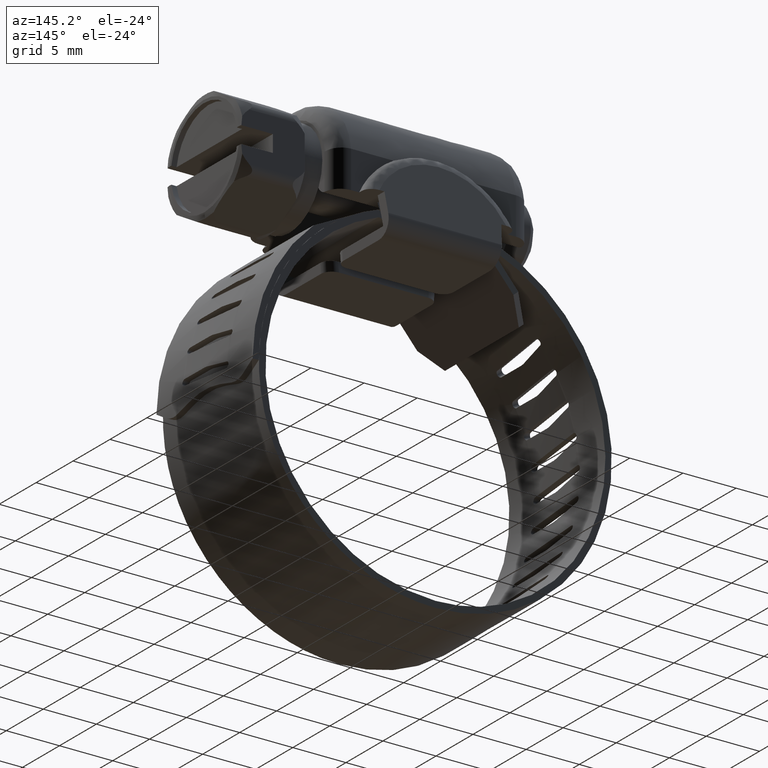
[diagram: clean part render]
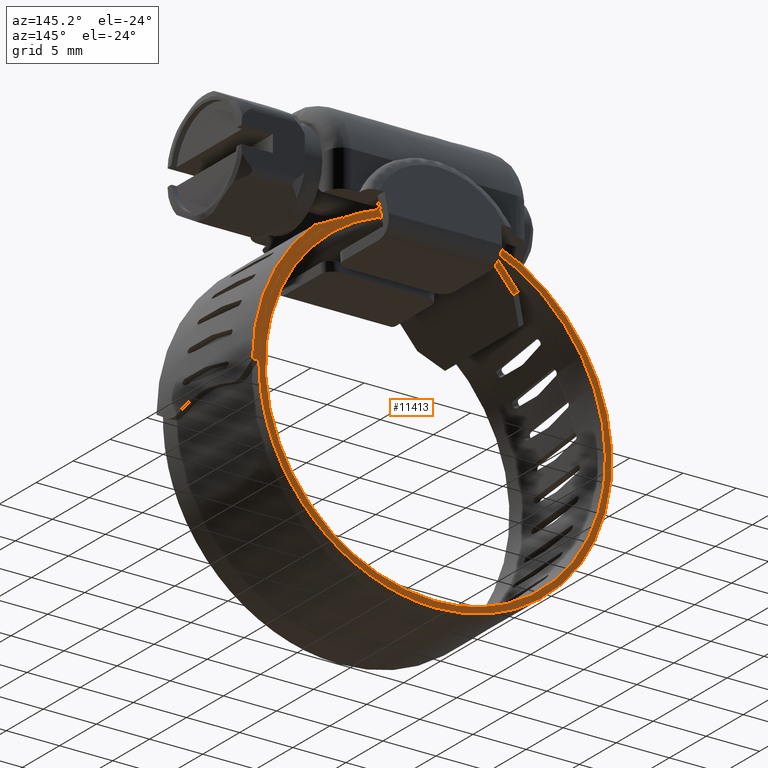
[diagram: same view with one face highlighted and labeled with its STEP entity id]
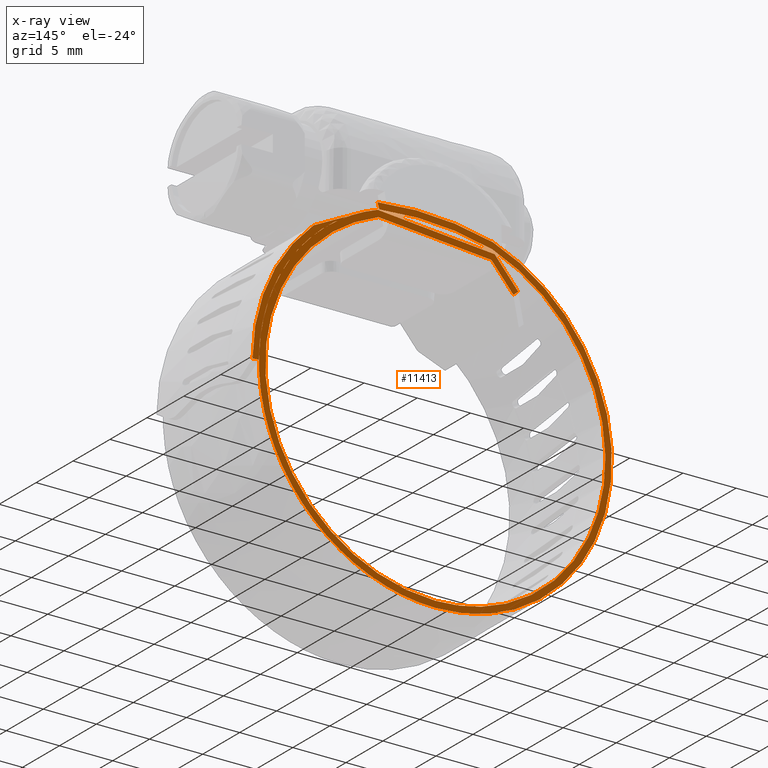
[diagram: x-ray of the same camera — body ghosted, the highlighted face saturated]
A machine part, auxiliary view. The second image highlights one B-rep face of the part: STEP entity #11413.
The next image is the same camera in x-ray: the body ghosted, the highlighted face saturated — about 0% of this face is hidden behind the body in this view.
In plain terms, the highlighted face is a freeform B-spline surface patch.
Its self-contained STEP definition (entity closure, byte-faithful):
#8290=CARTESIAN_POINT('',(-7.791181798299180,6.499999999999920,8.347631388851450));
#8291=VERTEX_POINT('',#8290);
#8299=CARTESIAN_POINT('',(-7.334361413864390,6.500000000000000,7.958639061497649));
#8300=VERTEX_POINT('',#8299);
#8301=CARTESIAN_POINT('',(-7.334361413864390,6.500000000000000,7.958639061497649));
#8302=CARTESIAN_POINT('',(-7.791181798299180,6.499999999999920,8.347631388851450));
#8303=QUASI_UNIFORM_CURVE('',1,(#8301,#8302),.UNSPECIFIED.,.F.,.U.);
#8304=EDGE_CURVE('',#8300,#8291,#8303,.T.);
#8362=CARTESIAN_POINT('',(-5.572247165430700,6.500000000000000,10.953473794129900));
#8363=VERTEX_POINT('',#8362);
#8364=CARTESIAN_POINT('',(-5.572247165430700,6.500000000000000,10.953473794129900));
#8365=CARTESIAN_POINT('',(-7.791181798299180,6.499999999999920,8.347631388851450));
#8366=QUASI_UNIFORM_CURVE('',1,(#8364,#8365),.UNSPECIFIED.,.F.,.U.);
#8367=EDGE_CURVE('',#8363,#8291,#8366,.T.);
#8403=CARTESIAN_POINT('',(5.428691733681980,6.500000000000000,11.911233856249240));
#8404=VERTEX_POINT('',#8403);
#8410=CARTESIAN_POINT('',(5.428691733681980,6.500000000000000,11.911233856249240));
#8411=CARTESIAN_POINT('',(-5.572247165430700,6.500000000000000,10.953473794129900));
#8412=QUASI_UNIFORM_CURVE('',1,(#8410,#8411),.UNSPECIFIED.,.F.,.U.);
#8413=EDGE_CURVE('',#8404,#8363,#8412,.T.);
#8509=CARTESIAN_POINT('',(-5.403568536057810,6.500000000000000,11.919905432693740));
#8510=VERTEX_POINT('',#8509);
#8516=CARTESIAN_POINT('',(-0.013288823278815,6.500000000000000,-20.375994680938181));
#8517=VERTEX_POINT('',#8516);
#8518=CARTESIAN_POINT('',(-5.403568536057810,6.500000000000000,11.919905432693740));
#8519=CARTESIAN_POINT('',(-6.035115718634340,6.499999999999989,11.702501730989590));
#8520=CARTESIAN_POINT('',(-7.356251747863360,6.500000000000004,11.156476872160971));
#8521=CARTESIAN_POINT('',(-9.256798365550859,6.500000000000004,10.066172607384971));
#8522=CARTESIAN_POINT('',(-10.966313753431500,6.499999999999989,8.744811107025498));
#8523=CARTESIAN_POINT('',(-12.301093371323740,6.500000000000044,7.413139469327751));
#8524=CARTESIAN_POINT('',(-13.416335895158230,6.500000000000008,6.048236911621512));
#8525=CARTESIAN_POINT('',(-14.388223821997350,6.499999999999916,4.576336163049805));
#8526=CARTESIAN_POINT('',(-15.115777700032689,6.500000000000019,3.138124818919907));
#8527=CARTESIAN_POINT('',(-15.713726945869681,6.499999999999930,1.643467278052422));
#8528=CARTESIAN_POINT('',(-16.099898394798171,6.499999999999764,0.362339750846856));
#8529=CARTESIAN_POINT('',(-16.423270304070702,6.499999999999915,-1.214818469182103));
#8530=CARTESIAN_POINT('',(-16.617745289809509,6.500000000000068,-2.906415811022940));
#8531=CARTESIAN_POINT('',(-16.605550491049041,6.499999999999973,-4.853639050636892));
#8532=CARTESIAN_POINT('',(-16.386057033032181,6.500000000000333,-6.572812909122177));
#8533=CARTESIAN_POINT('',(-16.038612212973479,6.499999999999957,-8.144980053231299));
#8534=CARTESIAN_POINT('',(-15.503958618312950,6.500000000000004,-9.825531892141592));
#8535=CARTESIAN_POINT('',(-14.689416708443540,6.500000000000001,-11.594650624427519));
#8536=CARTESIAN_POINT('',(-13.764438379994020,6.499999999999997,-13.095857495227040));
#8537=CARTESIAN_POINT('',(-12.835681343971689,6.500000000000006,-14.336182407994810));
#8538=CARTESIAN_POINT('',(-11.598482600795410,6.499999999999999,-15.717327511660390));
#8539=CARTESIAN_POINT('',(-10.006616258601030,6.500000000000004,-17.089265590925290));
#8540=CARTESIAN_POINT('',(-8.139000261824808,6.499999999999994,-18.290079705499920));
#8541=CARTESIAN_POINT('',(-6.496307109234742,6.500000000000035,-19.085024486952442));
#8542=CARTESIAN_POINT('',(-4.809868689667819,6.500000000000028,-19.693877502433558));
#8543=CARTESIAN_POINT('',(-2.715181965251238,6.499999999999833,-20.217563928457849));
#8544=CARTESIAN_POINT('',(-1.045541048125247,6.499999999999994,-20.375275074392469));
#8545=CARTESIAN_POINT('',(-0.013288823278815,6.500000000000000,-20.375994680938181));
#8546=B_SPLINE_CURVE_WITH_KNOTS('',3,(#8518,#8519,#8520,#8521,#8522,#8523,#8524,#8525,#8526,#8527,#8528,#8529,#8530,#8531,#8532,#8533,#8534,#8535,#8536,#8537,#8538,#8539,#8540,#8541,#8542,#8543,#8544,#8545),.UNSPECIFIED.,.F.,.U.,(4,1,1,1,1,1,1,1,1,1,1,1,1,1,1,1,1,1,1,1,1,1,1,1,1,4),(0.000000023502757,2.003759568769411,4.280777629892050,6.557814906617693,8.470510855706301,9.927803084700898,11.840500513877510,13.753199401426290,14.755090884607050,16.667781735637739,17.760753712184460,19.582377517841270,21.768324770029050,23.589894793816999,24.773952498007450,26.595562161928228,28.872591095161390,30.603125920775600,31.878267851984209,33.517717666214153,36.159065329592408,38.162848643233907,40.166629592341501,41.623913405553331,43.536615741167083,46.633351803859057),.UNSPECIFIED.);
#8547=EDGE_CURVE('',#8510,#8517,#8546,.T.);
#8549=CARTESIAN_POINT('',(-0.013288823278815,6.500000000000000,-20.375994680938181));
#8550=CARTESIAN_POINT('',(0.806431367803265,6.500000000000004,-20.376693983167829));
#8551=CARTESIAN_POINT('',(2.233426539291146,6.499999999999998,-20.271876379137701));
#8552=CARTESIAN_POINT('',(4.378054711637666,6.500000000000004,-19.832213544916272));
#8553=CARTESIAN_POINT('',(6.194485005057371,6.500000000000004,-19.218837664334099));
#8554=CARTESIAN_POINT('',(7.759397835748891,6.499999999999997,-18.475113068337158));
#8555=CARTESIAN_POINT('',(9.304784938885675,6.500000000000007,-17.566752882438038));
#8556=CARTESIAN_POINT('',(10.789986873649640,6.499999999999916,-16.451925336573929));
#8557=CARTESIAN_POINT('',(12.292008953255880,6.499999999999932,-14.987135356127499));
#8558=CARTESIAN_POINT('',(13.520162398128271,6.500000000000343,-13.476876655412759));
#8559=CARTESIAN_POINT('',(14.622352273293970,6.499999999999750,-11.726765338134120));
#8560=CARTESIAN_POINT('',(15.457258006659680,6.500000000000120,-9.933941146299908));
#8561=CARTESIAN_POINT('',(16.112868991961371,6.500000000000084,-7.941325783754777));
#8562=CARTESIAN_POINT('',(16.559837193321670,6.499999999999957,-5.671671735344448));
#8563=CARTESIAN_POINT('',(16.639800223342451,6.500000000000073,-3.570760533964450));
#8564=CARTESIAN_POINT('',(16.489350744930661,6.499999999999924,-1.693422271203688));
#8565=CARTESIAN_POINT('',(16.194854989567911,6.500000000000448,0.075929581194763));
#8566=CARTESIAN_POINT('',(15.639109317255031,6.499999999999440,1.912002790568331));
#8567=CARTESIAN_POINT('',(14.867807845445460,6.500000000000371,3.664311765782506));
#8568=CARTESIAN_POINT('',(13.991199101996861,6.499999999999826,5.229204023845340));
#8569=CARTESIAN_POINT('',(12.917727080458089,6.499999999999996,6.705806046635198));
#8570=CARTESIAN_POINT('',(11.727654913601301,6.499999999999970,8.006281777172553));
#8571=CARTESIAN_POINT('',(10.331604710557540,6.500000000000121,9.271972541471293));
#8572=CARTESIAN_POINT('',(8.289337180077407,6.499999999999846,10.708490960726440));
#8573=CARTESIAN_POINT('',(6.490304881145353,6.499999999999777,11.544013987446920));
#8574=CARTESIAN_POINT('',(5.428691733681980,6.500000000000000,11.911233856249240));
#8575=B_SPLINE_CURVE_WITH_KNOTS('',3,(#8549,#8550,#8551,#8552,#8553,#8554,#8555,#8556,#8557,#8558,#8559,#8560,#8561,#8562,#8563,#8564,#8565,#8566,#8567,#8568,#8569,#8570,#8571,#8572,#8573,#8574),.UNSPECIFIED.,.F.,.U.,(4,1,1,1,1,1,1,1,1,1,1,1,1,1,1,1,1,1,1,1,1,1,1,4),(0.000000023376131,2.459158380666885,4.280777629463522,6.557814906029797,8.197259746065591,9.472397940618698,11.931581747682650,13.753199400331381,15.756981716544850,17.760753710808419,19.946705124044851,21.677238096110401,24.045308689251129,26.868818613411690,27.961791121988401,29.692314471448011,32.242585574857621,33.699881434668669,35.430419455720262,37.616360522943062,39.164739888885492,40.713116193422962,43.263382482265669,46.633351800454129),.UNSPECIFIED.);
#8576=EDGE_CURVE('',#8517,#8404,#8575,.T.);
#8781=CARTESIAN_POINT('',(5.352101093344911,6.500000000000000,11.302296120139539));
#8782=VERTEX_POINT('',#8781);
#8788=CARTESIAN_POINT('',(-0.000000030884454,6.500000000000000,-19.776000000000000));
#8789=VERTEX_POINT('',#8788);
#8790=CARTESIAN_POINT('',(-0.000000030884454,6.500000000000000,-19.776000000000000));
#8791=CARTESIAN_POINT('',(1.021026014391666,6.500000000000013,-19.776132088201791));
#8792=CARTESIAN_POINT('',(2.479568310869515,6.499999999999994,-19.635889140518898));
#8793=CARTESIAN_POINT('',(4.496763786521949,6.499999999999989,-19.158299793738902));
#8794=CARTESIAN_POINT('',(5.878506052236212,6.500000000000024,-18.683605455642230));
#8795=CARTESIAN_POINT('',(7.446532381295089,6.499999999999957,-17.970851255927219));
#8796=CARTESIAN_POINT('',(8.934261617582374,6.500000000000052,-17.098044404254839));
#8797=CARTESIAN_POINT('',(10.395679696069671,6.499999999999960,-15.978639000594191));
#8798=CARTESIAN_POINT('',(11.707887902465290,6.499999999999977,-14.730711413145221));
#8799=CARTESIAN_POINT('',(13.042302137822150,6.500000000000018,-13.141277023053419));
#8800=CARTESIAN_POINT('',(14.180757335391950,6.499999999999992,-11.298593250820010));
#8801=CARTESIAN_POINT('',(15.085700580641991,6.500000000000037,-9.238641514645671));
#8802=CARTESIAN_POINT('',(15.703298567543680,6.499999999999828,-7.133960153037624));
#8803=CARTESIAN_POINT('',(15.996485771340300,6.500000000000127,-5.018385936458238));
#8804=CARTESIAN_POINT('',(16.015245659438818,6.499999999999971,-2.973674692590238));
#8805=CARTESIAN_POINT('',(15.824084661977050,6.500000000000001,-1.171535193394071));
#8806=CARTESIAN_POINT('',(15.422977328925210,6.500000000000003,0.594874232255430));
#8807=CARTESIAN_POINT('',(14.798372018724510,6.500000000000002,2.418847191265614));
#8808=CARTESIAN_POINT('',(13.871421418875601,6.499999999999999,4.310010169260056));
#8809=CARTESIAN_POINT('',(12.664689754883520,6.500000000000001,6.071198904935471));
#8810=CARTESIAN_POINT('',(11.228602481033640,6.500000000000002,7.687299097499741));
#8811=CARTESIAN_POINT('',(9.701624023678450,6.499999999999996,9.007821652275712));
#8812=CARTESIAN_POINT('',(7.696108755480823,6.500000000000049,10.318931074040730));
#8813=CARTESIAN_POINT('',(6.259358412635001,6.499999999999941,10.980374642001481));
#8814=CARTESIAN_POINT('',(5.352101093344911,6.500000000000000,11.302296120139539));
#8815=B_SPLINE_CURVE_WITH_KNOTS('',3,(#8790,#8791,#8792,#8793,#8794,#8795,#8796,#8797,#8798,#8799,#8800,#8801,#8802,#8803,#8804,#8805,#8806,#8807,#8808,#8809,#8810,#8811,#8812,#8813,#8814),.UNSPECIFIED.,.F.,.U.,(4,1,1,1,1,1,1,1,1,1,1,1,1,1,1,1,1,1,1,1,1,1,4),(0.000000026661617,3.063044423904231,4.375789051827482,6.213640846139199,7.438865097263268,9.539253421889690,11.377092929690930,12.952383586074159,14.965261994874551,17.590747863307580,19.428592246082982,21.704003029460200,24.154418226000971,25.817229070750191,27.830114740075249,29.580436588815601,31.243243462043690,33.606178365087359,35.881597479607699,37.631920545437382,40.082383303174552,41.920224716448232,44.808237193168132),.UNSPECIFIED.);
#8816=EDGE_CURVE('',#8789,#8782,#8815,.T.);
#8818=CARTESIAN_POINT('',(-5.352101035134290,6.500000000000000,11.302296140801641));
#8819=VERTEX_POINT('',#8818);
#8820=CARTESIAN_POINT('',(-5.352101035134290,6.500000000000000,11.302296140801641));
#8821=CARTESIAN_POINT('',(-6.204367464975141,6.499999999999968,10.999863199201011));
#8822=CARTESIAN_POINT('',(-7.564066753640140,6.500000000000046,10.382926737821940));
#8823=CARTESIAN_POINT('',(-9.315624799275682,6.499999999999948,9.271698872757582));
#8824=CARTESIAN_POINT('',(-10.775706557793580,6.500000000000046,8.103653463495517));
#8825=CARTESIAN_POINT('',(-12.167772194562920,6.499999999999975,6.684431086207111));
#8826=CARTESIAN_POINT('',(-13.274230420750239,6.499999999999937,5.212025277133877));
#8827=CARTESIAN_POINT('',(-14.156604648391481,6.500000000000285,3.732578933212049));
#8828=CARTESIAN_POINT('',(-14.931576075808360,6.500000000000076,2.095351371213888));
#8829=CARTESIAN_POINT('',(-15.536020649585449,6.499999999999388,0.231032224667480));
#8830=CARTESIAN_POINT('',(-15.949830203022641,6.500000000000404,-1.980198145106270));
#8831=CARTESIAN_POINT('',(-16.038791203159668,6.499999999999974,-3.822069859813993));
#8832=CARTESIAN_POINT('',(-15.913310878540180,6.499999999999708,-5.627520067522758));
#8833=CARTESIAN_POINT('',(-15.639562555683259,6.500000000000425,-7.358695095509256));
#8834=CARTESIAN_POINT('',(-15.079412828028230,6.499999999999908,-9.267712306396325));
#8835=CARTESIAN_POINT('',(-14.186958221754020,6.499999999999954,-11.269282975054169));
#8836=CARTESIAN_POINT('',(-13.105269705860390,6.500000000000041,-13.041742913934190));
#8837=CARTESIAN_POINT('',(-11.847970717236420,6.499999999999987,-14.581629210887151));
#8838=CARTESIAN_POINT('',(-10.444776501025011,6.500000000000007,-15.945628997221849));
#8839=CARTESIAN_POINT('',(-8.982355815799124,6.499999999999982,-17.065796539245881));
#8840=CARTESIAN_POINT('',(-7.293997042535797,6.500000000000039,-18.056295201207931));
#8841=CARTESIAN_POINT('',(-5.716576313035895,6.500000000000068,-18.752603700754069));
#8842=CARTESIAN_POINT('',(-3.880448841742876,6.499999999999215,-19.338854421509030));
#8843=CARTESIAN_POINT('',(-2.012856843487396,6.500000000002219,-19.695510157565369));
#8844=CARTESIAN_POINT('',(-0.612603162032093,6.499999999997836,-19.776010636159040));
#8845=CARTESIAN_POINT('',(-0.000000030884454,6.500000000000000,-19.776000000000000));
#8846=B_SPLINE_CURVE_WITH_KNOTS('',3,(#8820,#8821,#8822,#8823,#8824,#8825,#8826,#8827,#8828,#8829,#8830,#8831,#8832,#8833,#8834,#8835,#8836,#8837,#8838,#8839,#8840,#8841,#8842,#8843,#8844,#8845),.UNSPECIFIED.,.F.,.U.,(4,1,1,1,1,1,1,1,1,1,1,1,1,1,1,1,1,1,1,1,1,1,1,4),(0.000000026591103,2.712993838237260,4.463316734176601,6.213640846080217,8.314028457437232,10.414414725668321,11.727157814648731,13.477484280035050,15.840426089469180,17.590747863268831,20.216219696927588,21.353948729660370,23.016718592649401,25.467176929527358,27.305008992577729,29.580436588795742,31.680823051879390,33.256113308045833,35.444016481772010,37.194340378262503,39.119704980278733,40.607481958970702,42.970423897727557,44.808237193168303),.UNSPECIFIED.);
#8847=EDGE_CURVE('',#8819,#8789,#8846,.T.);
#8979=CARTESIAN_POINT('',(-5.275000000000000,6.500000000000000,10.377083000000200));
#8980=VERTEX_POINT('',#8979);
#8986=CARTESIAN_POINT('',(-5.275000000000000,6.500000000000000,10.377083000000200));
#8987=CARTESIAN_POINT('',(5.352101093344911,6.500000000000000,11.302296120139539));
#8988=QUASI_UNIFORM_CURVE('',1,(#8986,#8987),.UNSPECIFIED.,.F.,.U.);
#8989=EDGE_CURVE('',#8980,#8782,#8988,.T.);
#9006=CARTESIAN_POINT('',(-7.334361413864390,6.500000000000000,7.958639061497649));
#9007=CARTESIAN_POINT('',(-5.275000000000000,6.500000000000000,10.377083000000200));
#9008=QUASI_UNIFORM_CURVE('',1,(#9006,#9007),.UNSPECIFIED.,.F.,.U.);
#9009=EDGE_CURVE('',#8300,#8980,#9008,.T.);
#11190=CARTESIAN_POINT('',(17.209567224353950,6.500000000000000,-3.653951032592020));
#11191=VERTEX_POINT('',#11190);
#11206=CARTESIAN_POINT('',(16.609231918422999,6.500000000000000,-3.616265595307415));
#11207=VERTEX_POINT('',#11206);
#11221=CARTESIAN_POINT('',(16.609231918422999,6.500000000000000,-3.616265595307415));
#11222=CARTESIAN_POINT('',(17.209567224353950,6.500000000000000,-3.653951032592020));
#11223=QUASI_UNIFORM_CURVE('',1,(#11221,#11222),.UNSPECIFIED.,.F.,.U.);
#11224=EDGE_CURVE('',#11207,#11191,#11223,.T.);
#11342=CARTESIAN_POINT('',(-18.284600989399632,6.500000000000000,14.443189660496110));
#11343=CARTESIAN_POINT('',(18.898156765524899,6.500000000000000,14.443189660496110));
#11344=CARTESIAN_POINT('',(-18.284600989399632,6.500000000000000,-22.032470245057649));
#11345=CARTESIAN_POINT('',(18.898156765524899,6.500000000000000,-22.032470245057649));
#11346=B_SPLINE_SURFACE_WITH_KNOTS('',1,1,((#11342,#11344),(#11343,#11345)),.UNSPECIFIED.,.F.,.F.,.U.,(2,2),(2,2),(0.0,37.182757754924531),(0.0,36.475659905553762),.UNSPECIFIED.);
#11347=ORIENTED_EDGE('',*,*,#9009,.F.);
#11348=ORIENTED_EDGE('',*,*,#8304,.T.);
#11349=ORIENTED_EDGE('',*,*,#8367,.F.);
#11350=ORIENTED_EDGE('',*,*,#8413,.F.);
#11351=ORIENTED_EDGE('',*,*,#8576,.F.);
#11352=ORIENTED_EDGE('',*,*,#8547,.F.);
#11353=CARTESIAN_POINT('',(5.458087624600850,6.500000000000000,12.545561796659600));
#11354=VERTEX_POINT('',#11353);
#11355=CARTESIAN_POINT('',(5.458087624600850,6.500000000000000,12.545561796659600));
#11356=CARTESIAN_POINT('',(4.610216975979288,6.499999999999996,12.654760584839160));
#11357=CARTESIAN_POINT('',(2.620759330899945,6.500000000000020,12.823429481714991));
#11358=CARTESIAN_POINT('',(-1.032321424163795,6.499999999999965,12.761604190884720));
#11359=CARTESIAN_POINT('',(-3.799456012548403,6.500000000000034,12.317974067896021));
#11360=CARTESIAN_POINT('',(-5.403568536057810,6.500000000000000,11.919905432693740));
#11361=B_SPLINE_CURVE_WITH_KNOTS('',3,(#11355,#11356,#11357,#11358,#11359,#11360),.UNSPECIFIED.,.F.,.U.,(4,1,1,4),(7.465335E-010,2.564623005240215,5.984117382749651,10.942392432663540),.UNSPECIFIED.);
#11362=EDGE_CURVE('',#11354,#8510,#11361,.T.);
#11363=ORIENTED_EDGE('',*,*,#11362,.F.);
#11364=CARTESIAN_POINT('',(17.209567224353950,6.500000000000000,-3.653951032592020));
#11365=CARTESIAN_POINT('',(17.203321334078439,6.500000000000007,-2.764079840418336));
#11366=CARTESIAN_POINT('',(17.094731809322390,6.499999999999993,-1.485623505545779));
#11367=CARTESIAN_POINT('',(16.720551190540601,6.500000000000020,0.397495097656228));
#11368=CARTESIAN_POINT('',(16.272931909712408,6.499999999999883,1.920667800534345));
#11369=CARTESIAN_POINT('',(15.616563912624629,6.500000000000083,3.517202178536424));
#11370=CARTESIAN_POINT('',(14.903304698812761,6.499999999999988,4.872041762144972));
#11371=CARTESIAN_POINT('',(14.003061205200170,6.500000000000004,6.278377156089231));
#11372=CARTESIAN_POINT('',(12.742080531286240,6.500000000000014,7.874073176586578));
#11373=CARTESIAN_POINT('',(11.029870270716350,6.499999999999961,9.514030330312986));
#11374=CARTESIAN_POINT('',(9.212976292169849,6.500000000000067,10.806764138165830));
#11375=CARTESIAN_POINT('',(7.382544201066171,6.499999999999917,11.811664274620830));
#11376=CARTESIAN_POINT('',(6.170180160783701,6.500000000000031,12.307458585854270));
#11377=CARTESIAN_POINT('',(5.458087624600850,6.500000000000000,12.545561796659600));
#11378=B_SPLINE_CURVE_WITH_KNOTS('',3,(#11364,#11365,#11366,#11367,#11368,#11369,#11370,#11371,#11372,#11373,#11374,#11375,#11376,#11377),.UNSPECIFIED.,.F.,.U.,(4,1,1,1,1,1,1,1,1,1,1,4),(0.000000010877514,2.669666316432917,3.837650805064452,5.756483399832018,7.425029287430899,9.010149312698999,10.344982580155859,12.430654726316190,15.100337102567551,17.436304851717299,19.104847544003270,21.357383117562740),.UNSPECIFIED.);
#11379=EDGE_CURVE('',#11191,#11354,#11378,.T.);
#11380=ORIENTED_EDGE('',*,*,#11379,.F.);
#11381=ORIENTED_EDGE('',*,*,#11224,.F.);
#11382=CARTESIAN_POINT('',(5.267799851517740,6.500000000000000,11.976535818856220));
#11383=VERTEX_POINT('',#11382);
#11384=CARTESIAN_POINT('',(16.609231918422999,6.500000000000000,-3.616265595307415));
#11385=CARTESIAN_POINT('',(16.602048792845970,6.499999999999995,-2.866321219281732));
#11386=CARTESIAN_POINT('',(16.481694772574780,6.500000000000008,-1.313886970416263));
#11387=CARTESIAN_POINT('',(15.959863734795190,6.500000000000011,1.046108093822750));
#11388=CARTESIAN_POINT('',(15.100539822003650,6.500000000000004,3.277368761205267));
#11389=CARTESIAN_POINT('',(14.064718287019399,6.499999999999989,5.127688922105777));
#11390=CARTESIAN_POINT('',(12.983575684725110,6.499999999999933,6.629292031331307));
#11391=CARTESIAN_POINT('',(11.613081470487611,6.500000000000040,8.174445065089264));
#11392=CARTESIAN_POINT('',(9.876324400408201,6.500000000000006,9.659163771000360));
#11393=CARTESIAN_POINT('',(7.662967099910826,6.499999999999958,11.031190167139879));
#11394=CARTESIAN_POINT('',(6.131494345816992,6.500000000000074,11.687773225943809));
#11395=CARTESIAN_POINT('',(5.267799851517740,6.500000000000000,11.976535818856220));
#11396=B_SPLINE_CURVE_WITH_KNOTS('',3,(#11384,#11385,#11386,#11387,#11388,#11389,#11390,#11391,#11392,#11393,#11394,#11395),.UNSPECIFIED.,.F.,.U.,(4,1,1,1,1,1,1,1,1,4),(0.000000011287426,2.249936014841598,4.660581661552683,7.231945076669991,9.401522382042767,11.008606128324709,12.776418312920690,15.588846940945920,17.838789873430020,20.570848944171441),.UNSPECIFIED.);
#11397=EDGE_CURVE('',#11207,#11383,#11396,.T.);
#11398=ORIENTED_EDGE('',*,*,#11397,.T.);
#11399=CARTESIAN_POINT('',(5.267799851517740,6.500000000000000,11.976535818856220));
#11400=CARTESIAN_POINT('',(3.856933283476363,6.499999999999998,12.149432117863840));
#11401=CARTESIAN_POINT('',(1.819169449778149,6.499999999999998,12.247294071448501));
#11402=CARTESIAN_POINT('',(-1.744195408396430,6.500000000000046,12.041774775951129));
#11403=CARTESIAN_POINT('',(-3.866378637308595,6.499999999999928,11.679701301715520));
#11404=CARTESIAN_POINT('',(-5.352101035134290,6.500000000000000,11.302296140801641));
#11405=B_SPLINE_CURVE_WITH_KNOTS('',3,(#11399,#11400,#11401,#11402,#11403,#11404),.UNSPECIFIED.,.F.,.U.,(4,1,1,4),(7.695320E-010,4.264245632470435,6.103720132614482,10.702414748887611),.UNSPECIFIED.);
#11406=EDGE_CURVE('',#11383,#8819,#11405,.T.);
#11407=ORIENTED_EDGE('',*,*,#11406,.T.);
#11408=ORIENTED_EDGE('',*,*,#8847,.T.);
#11409=ORIENTED_EDGE('',*,*,#8816,.T.);
#11410=ORIENTED_EDGE('',*,*,#8989,.F.);
#11411=EDGE_LOOP('',(#11347,#11348,#11349,#11350,#11351,#11352,#11363,#11380,#11381,#11398,#11407,#11408,#11409,#11410));
#11412=FACE_OUTER_BOUND('',#11411,.T.);
#11413=ADVANCED_FACE('',(#11412),#11346,.T.);